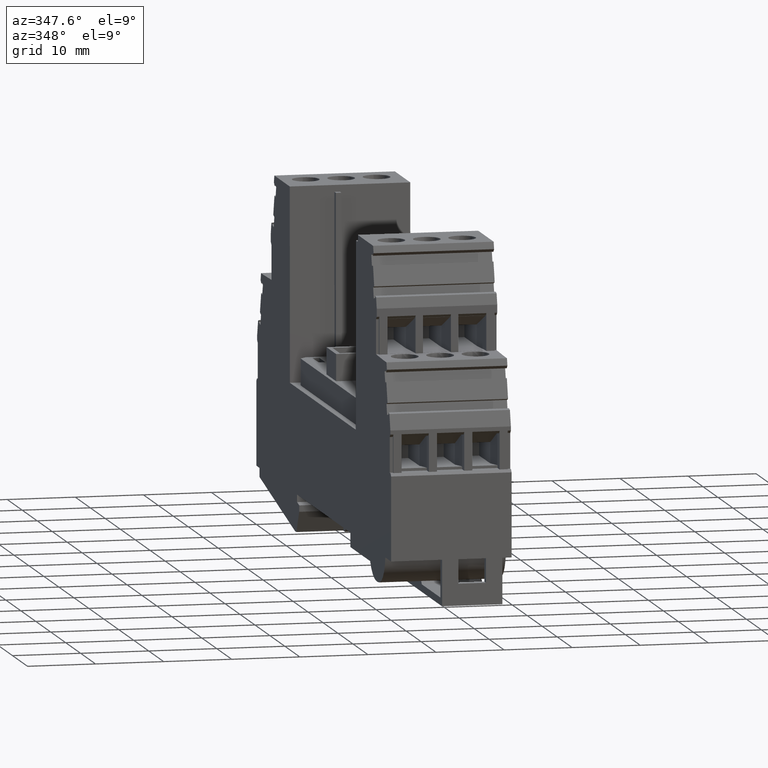
[diagram: clean part render]
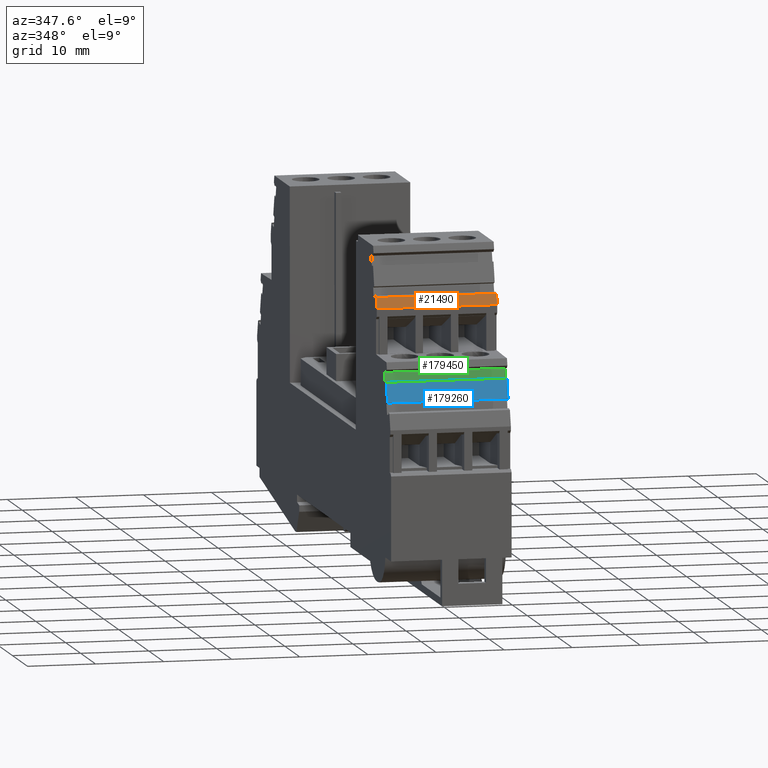
[diagram: same view with three faces highlighted in distinct colors, each labeled with its STEP entity id]
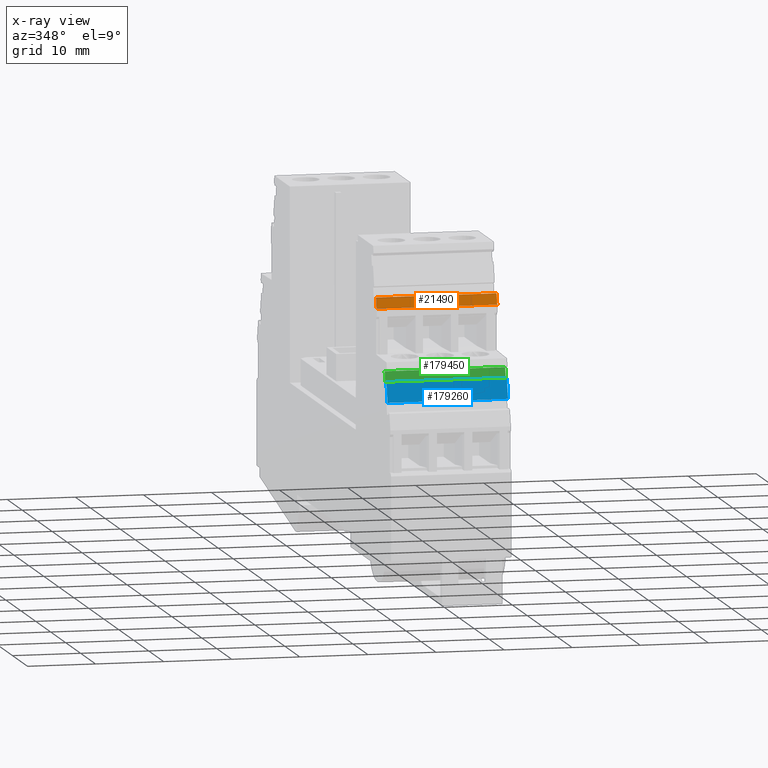
[diagram: x-ray of the same camera — body ghosted, the three highlighted faces saturated]
A machine part, auxiliary view with three faces highlighted in distinct colors.
The next image is the same camera in x-ray (body ghosted, the three faces saturated) — at least one of them is partly hidden behind the body in this view.
Their STEP definitions:

[orange] entity #21490 — the highlighted planar face has unit normal (0, 0.9646, -0.2639).
#440=CARTESIAN_POINT('',(33.9413513671894,52.2833516012792,-37.3));
#450=VERTEX_POINT('',#440);
#480=CARTESIAN_POINT('',(14.2489347517698,-19.6999999999998,-37.3));
#490=DIRECTION('',(-0.263873049965441,-0.964557418457779,0.));
#500=VECTOR('',#490,1.);
#510=LINE('',#480,#500);
#520=CARTESIAN_POINT('',(34.369941174828,53.8500120786842,-37.3));
#530=VERTEX_POINT('',#520);
#540=EDGE_CURVE('',#530,#450,#510,.T.);
#20440=CARTESIAN_POINT('',(34.3699411748279,53.8500120786843,-55.));
#20450=VERTEX_POINT('',#20440);
#20480=CARTESIAN_POINT('',(25.2516466687325,20.5191410000002,-55.));
#20490=DIRECTION('',(0.263873049965441,0.964557418457779,
-2.3740895734514E-21));
#20500=VECTOR('',#20490,1.);
#20510=LINE('',#20480,#20500);
#20520=CARTESIAN_POINT('',(33.9413513671894,52.2833516012792,-55.));
#20530=VERTEX_POINT('',#20520);
#20540=EDGE_CURVE('',#20530,#20450,#20510,.T.);
#21170=CARTESIAN_POINT('',(34.3699411748279,53.8500120786842,
-3.74999999990759));
#21180=DIRECTION('',(-1.22464679914735E-16,-7.51478429024852E-19,-1.));
#21190=VECTOR('',#21180,1.);
#21200=LINE('',#21170,#21190);
#21210=EDGE_CURVE('',#530,#20450,#21200,.T.);
#21330=CARTESIAN_POINT('',(34.3090023042563,53.6272570846066,-55.));
#21340=DIRECTION('',(0.964557418457779,-0.263873049965441,
-1.17925920605765E-16));
#21350=DIRECTION('',(0.263873049965441,0.964557418457779,
-2.3740895734514E-21));
#21360=AXIS2_PLACEMENT_3D('',#21330,#21340,#21350);
#21370=PLANE('',#21360);
#21380=ORIENTED_EDGE('',*,*,#20540,.F.);
#21390=ORIENTED_EDGE('',*,*,#21210,.T.);
#21400=ORIENTED_EDGE('',*,*,#540,.F.);
#21410=CARTESIAN_POINT('',(33.9413513671894,52.2833516012792,
-3.74999999990759));
#21420=DIRECTION('',(-1.22464679914735E-16,-7.51478429024846E-19,-1.));
#21430=VECTOR('',#21420,1.);
#21440=LINE('',#21410,#21430);
#21450=EDGE_CURVE('',#450,#20530,#21440,.T.);
#21460=ORIENTED_EDGE('',*,*,#21450,.F.);
#21470=EDGE_LOOP('',(#21460,#21400,#21390,#21380));
#21480=FACE_OUTER_BOUND('',#21470,.T.);
#21490=ADVANCED_FACE('',(#21480),#21370,.F.);

[blue] entity #179260 — the highlighted planar face has unit normal (0, 0.9646, -0.2639).
#7750=CARTESIAN_POINT('',(26.7373932870742,39.7117907254851,-37.3));
#7760=VERTEX_POINT('',#7750);
#7790=CARTESIAN_POINT('',(10.4841665504999,-19.6999999999998,-37.3));
#7800=DIRECTION('',(-0.263873049965391,-0.964557418457793,0.));
#7810=VECTOR('',#7800,1.);
#7820=LINE('',#7790,#7810);
#7830=CARTESIAN_POINT('',(27.5290124369703,42.6054629808585,-37.3));
#7840=VERTEX_POINT('',#7830);
#7850=EDGE_CURVE('',#7840,#7760,#7820,.T.);
#9590=CARTESIAN_POINT('',(27.5290124369703,42.6054629808585,-55.));
#9600=VERTEX_POINT('',#9590);
#9720=CARTESIAN_POINT('',(27.5290124369703,42.6054629808585,
-3.74999999990759));
#9730=DIRECTION('',(-1.22464679914735E-16,-7.51478429024827E-19,-1.));
#9740=VECTOR('',#9730,1.);
#9750=LINE('',#9720,#9740);
#9760=EDGE_CURVE('',#7840,#9600,#9750,.T.);
#9990=CARTESIAN_POINT('',(26.7373932870741,39.7117907254851,-55.));
#10000=VERTEX_POINT('',#9990);
#10030=CARTESIAN_POINT('',(26.7373932870741,39.7117907254851,
-3.74999999990759));
#10040=DIRECTION('',(-1.22464679914735E-16,-7.51478429024827E-19,-1.));
#10050=VECTOR('',#10040,1.);
#10060=LINE('',#10030,#10050);
#10070=EDGE_CURVE('',#7760,#10000,#10060,.T.);
#13840=CARTESIAN_POINT('',(21.4868784674602,20.5191410000002,-55.));
#13850=DIRECTION('',(0.263873049965391,0.964557418457793,
-2.3740895734514E-21));
#13860=VECTOR('',#13850,1.);
#13870=LINE('',#13840,#13860);
#13880=EDGE_CURVE('',#10000,#9600,#13870,.T.);
#179150=CARTESIAN_POINT('',(27.5048329268037,42.5170775776922,-55.));
#179160=DIRECTION('',(0.964557418457793,-0.263873049965391,
-1.17925920605767E-16));
#179170=DIRECTION('',(0.263873049965391,0.964557418457793,
-2.3740895734514E-21));
#179180=AXIS2_PLACEMENT_3D('',#179150,#179160,#179170);
#179190=PLANE('',#179180);
#179200=ORIENTED_EDGE('',*,*,#13880,.F.);
#179210=ORIENTED_EDGE('',*,*,#9760,.T.);
#179220=ORIENTED_EDGE('',*,*,#7850,.F.);
#179230=ORIENTED_EDGE('',*,*,#10070,.F.);
#179240=EDGE_LOOP('',(#179230,#179220,#179210,#179200));
#179250=FACE_OUTER_BOUND('',#179240,.T.);
#179260=ADVANCED_FACE('',(#179250),#179190,.F.);

[green] entity #179450 — the highlighted planar face has unit normal (0, 0.9646, -0.2639).
#7910=CARTESIAN_POINT('',(28.2697449261752,42.4708490729604,-37.3));
#7920=VERTEX_POINT('',#7910);
#7950=CARTESIAN_POINT('',(11.2617252376806,-19.6999999999998,-37.3));
#7960=DIRECTION('',(-0.263873049965295,-0.964557418457819,0.));
#7970=VECTOR('',#7960,1.);
#7980=LINE('',#7950,#7970);
#7990=CARTESIAN_POINT('',(28.691119446381,44.0111349015705,-37.3));
#8000=VERTEX_POINT('',#7990);
#8010=EDGE_CURVE('',#8000,#7920,#7980,.T.);
#8900=CARTESIAN_POINT('',(28.6911194463811,44.0111349015708,-55.));
#8910=VERTEX_POINT('',#8900);
#9030=CARTESIAN_POINT('',(28.691119446381,44.0111349015705,
-3.74999999990759));
#9040=DIRECTION('',(1.22464679914735E-16,7.51478429024834E-19,1.));
#9050=VECTOR('',#9040,1.);
#9060=LINE('',#9030,#9050);
#9070=EDGE_CURVE('',#8910,#8000,#9060,.T.);
#9610=CARTESIAN_POINT('',(28.2697449261752,42.4708490729604,-55.));
#9620=VERTEX_POINT('',#9610);
#9650=CARTESIAN_POINT('',(28.2697449261751,42.4708490729603,
-3.74999999990759));
#9660=DIRECTION('',(1.22464679914735E-16,7.51478429024839E-19,1.));
#9670=VECTOR('',#9660,1.);
#9680=LINE('',#9650,#9670);
#9690=EDGE_CURVE('',#9620,#7920,#9680,.T.);
#13770=CARTESIAN_POINT('',(22.2644371546367,20.5191410000002,-55.));
#13780=DIRECTION('',(0.263873049965295,0.964557418457819,
-2.3740895734514E-21));
#13790=VECTOR('',#13780,1.);
#13800=LINE('',#13770,#13790);
#13810=EDGE_CURVE('',#9620,#8910,#13800,.T.);
#179340=CARTESIAN_POINT('',(28.5591829213984,43.5288561923416,-55.));
#179350=DIRECTION('',(0.964557418457819,-0.263873049965295,
-1.1792592060577E-16));
#179360=DIRECTION('',(0.263873049965295,0.964557418457819,
-2.3740895734514E-21));
#179370=AXIS2_PLACEMENT_3D('',#179340,#179350,#179360);
#179380=PLANE('',#179370);
#179390=ORIENTED_EDGE('',*,*,#13810,.F.);
#179400=ORIENTED_EDGE('',*,*,#9070,.F.);
#179410=ORIENTED_EDGE('',*,*,#8010,.F.);
#179420=ORIENTED_EDGE('',*,*,#9690,.T.);
#179430=EDGE_LOOP('',(#179420,#179410,#179400,#179390));
#179440=FACE_OUTER_BOUND('',#179430,.T.);
#179450=ADVANCED_FACE('',(#179440),#179380,.F.);